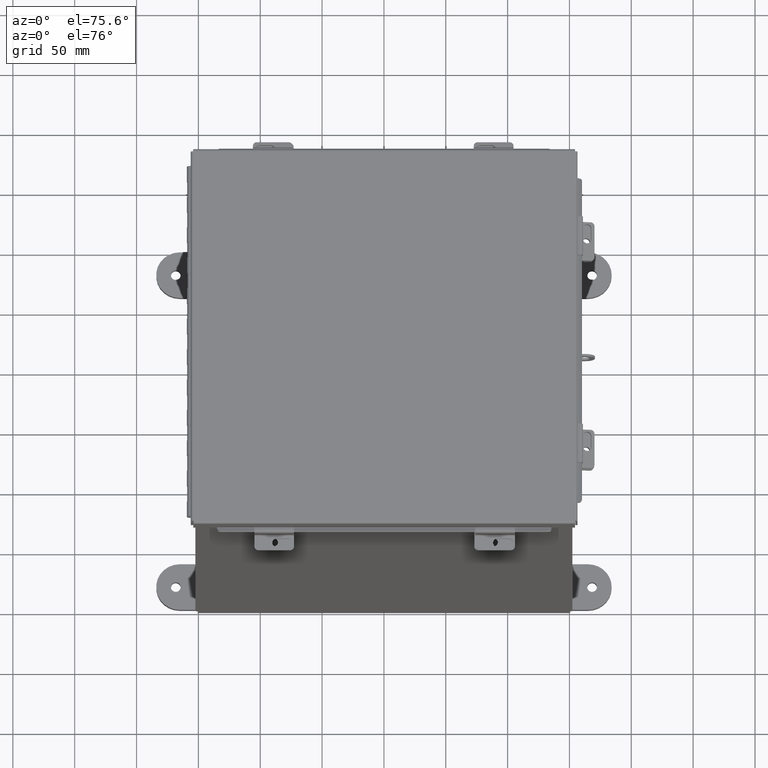
[diagram: clean part render]
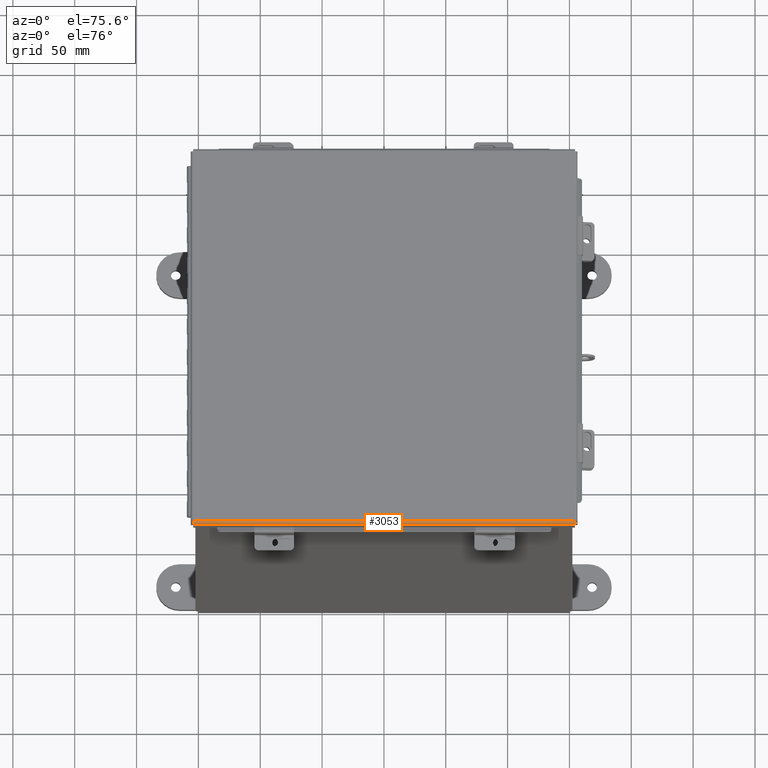
[diagram: same view with one face highlighted and labeled with its STEP entity id]
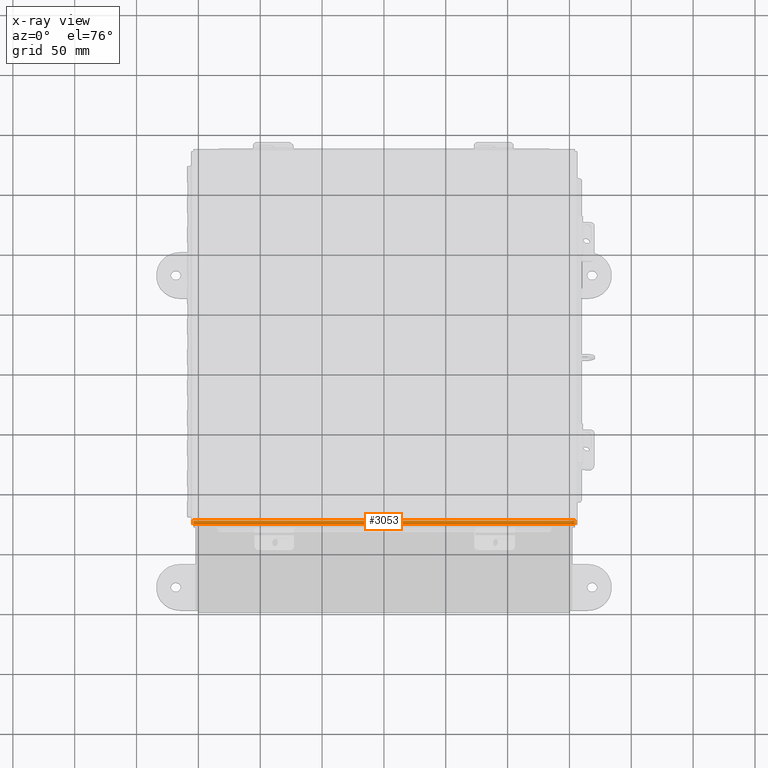
[diagram: x-ray of the same camera — body ghosted, the highlighted face saturated]
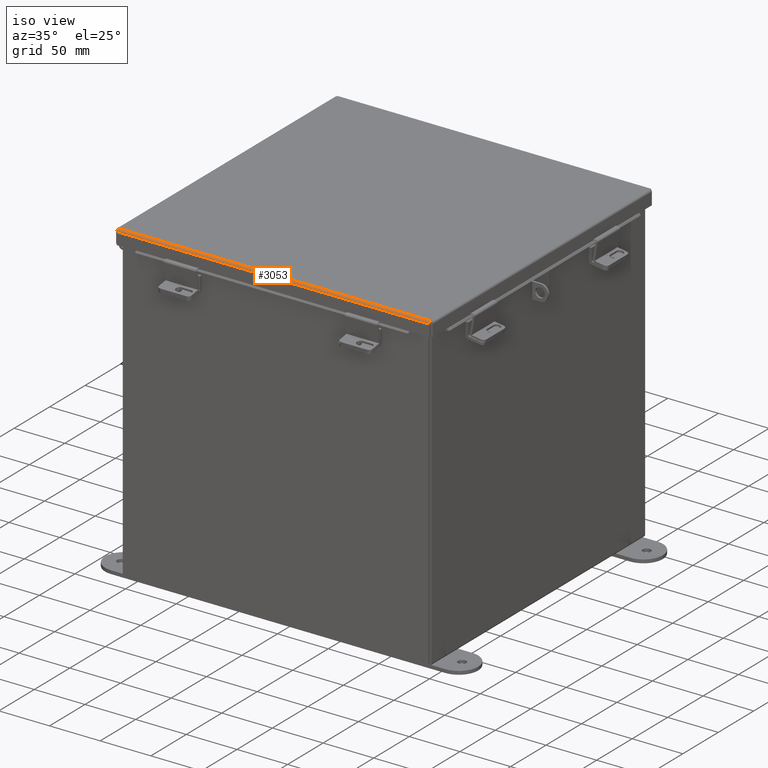
[diagram: same view with one face highlighted and labeled with its STEP entity id]
A machine part, auxiliary view. The second image highlights one B-rep face of the part: STEP entity #3053.
The next image is the same camera in x-ray: the body ghosted, the highlighted face saturated — about 0% of this face is hidden behind the body in this view.
A second angle (iso view) of the same face is appended — the face is thin or edge-on in the first view.
In plain terms, the highlighted cylindrical surface (edge-blend (fillet) strip) has radius 2.2276 mm, axis along (-1, 0, -0).
Its self-contained STEP definition (entity closure, byte-faithful):
#48 = CARTESIAN_POINT ( 'NONE',  ( -6.073984854505826400, -6.156250000000012400, 0.001520096845006975100 ) ) ;
#415 = CARTESIAN_POINT ( 'NONE',  ( 6.072502621458780500, -6.145181066258679400, -0.03116738457852826300 ) ) ;
#606 = CARTESIAN_POINT ( 'NONE',  ( -6.068550000000011700, -6.068550000000011700, -0.07470000000000015500 ) ) ;
#1214 = AXIS2_PLACEMENT_3D ( 'NONE', #9014, #6456, #14899 ) ;
#1514 = CARTESIAN_POINT ( 'NONE',  ( 6.068550000000035600, -6.068550000000011700, -0.07470000000000015500 ) ) ;
#1567 = CARTESIAN_POINT ( 'NONE',  ( 6.072008543776436600, -6.138680782078332700, -0.04089574734180042400 ) ) ;
#1620 = CARTESIAN_POINT ( 'NONE',  ( -6.074478932188161400, -6.156250000000012400, 0.01300000000000010700 ) ) ;
#1734 = ORIENTED_EDGE ( 'NONE', *, *, #14344, .F. ) ;
#1988 = CARTESIAN_POINT ( 'NONE',  ( -6.156250000000022200, -6.156250000000012400, 0.01300000000000010700 ) ) ;
#2655 = CARTESIAN_POINT ( 'NONE',  ( 6.074478932188161400, -6.156250000000012400, 0.01300000000000010700 ) ) ;
#2913 = FACE_OUTER_BOUND ( 'NONE', #14194, .T. ) ;
#3053 = ADVANCED_FACE ( 'NONE', ( #2913 ), #7973, .T. ) ;
#3110 = CARTESIAN_POINT ( 'NONE',  ( 6.074478932188172900, -6.068550000000011700, -0.07470000000000015500 ) ) ;
#3264 = EDGE_CURVE ( 'NONE', #13726, #10161, #6407, .T. ) ;
#4068 = VERTEX_POINT ( 'NONE', #15030 ) ;
#4453 = CARTESIAN_POINT ( 'NONE',  ( 6.073490776823472700, -6.153967403743823900, -0.009955289458309223000 ) ) ;
#4875 = CARTESIAN_POINT ( 'NONE',  ( -6.073490776823484300, -6.153967403743823900, -0.009955289458309221300 ) ) ;
#5435 = B_SPLINE_CURVE_WITH_KNOTS ( 'NONE', 3,
 ( #606, #11366, #6690, #9294, #13517, #15597, #8513, #4875, #48, #8988 ),
 .UNSPECIFIED., .F., .F.,
 ( 4, 2, 2, 2, 4 ),
 ( 0.0000000000000000000, 0.2500000000000000000, 0.5000000000000000000, 0.7500000000000000000, 1.000000000000000000 ),
 .UNSPECIFIED. ) ;
#5984 = EDGE_CURVE ( 'NONE', #13726, #15071, #8251, .T. ) ;
#6407 = B_SPLINE_CURVE_WITH_KNOTS ( 'NONE', 3,
 ( #13864, #6762, #4453, #415, #1567, #10323, #15563, #10491, #11357, #1514 ),
 .UNSPECIFIED., .F., .F.,
 ( 4, 2, 2, 2, 4 ),
 ( 0.0000000000000000000, 0.2500000000000000600, 0.5000000000000000000, 0.7500000000000000000, 1.000000000000000000 ),
 .UNSPECIFIED. ) ;
#6456 = DIRECTION ( 'NONE',  ( 1.000000000000000000, 1.152944185888926400E-030, -1.577721810442015900E-030 ) ) ;
#6690 = CARTESIAN_POINT ( 'NONE',  ( -6.069538155364723400, -6.091505289458322800, -0.07241740374381171200 ) ) ;
#6762 = CARTESIAN_POINT ( 'NONE',  ( 6.073984854505816600, -6.156250000000011500, 0.001520096845006977200 ) ) ;
#7806 = ORIENTED_EDGE ( 'NONE', *, *, #3264, .F. ) ;
#7856 = EDGE_CURVE ( 'NONE', #10161, #4068, #14589, .T. ) ;
#7973 = CYLINDRICAL_SURFACE ( 'NONE', #1214, 0.08770000000000026400 ) ;
#8100 = VECTOR ( 'NONE', #8345, 39.37007874015748100 ) ;
#8251 = LINE ( 'NONE', #1988, #12195 ) ;
#8345 = DIRECTION ( 'NONE',  ( -1.000000000000000000, -1.152944185888926400E-030, 1.577721810442015900E-030 ) ) ;
#8513 = CARTESIAN_POINT ( 'NONE',  ( -6.072502621458793800, -6.145181066258679400, -0.03116738457852827000 ) ) ;
#8730 = DIRECTION ( 'NONE',  ( -1.000000000000000000, -1.152944185888926400E-030, 1.577721810442015900E-030 ) ) ;
#8988 = CARTESIAN_POINT ( 'NONE',  ( -6.074478932188161400, -6.156250000000012400, 0.01300000000000010700 ) ) ;
#9014 = CARTESIAN_POINT ( 'NONE',  ( 6.074478932188161400, -6.068550000000011700, 0.01300000000000010700 ) ) ;
#9294 = CARTESIAN_POINT ( 'NONE',  ( -6.070526310729410300, -6.112717384578538700, -0.06363106625866883600 ) ) ;
#10161 = VERTEX_POINT ( 'NONE', #13738 ) ;
#10323 = CARTESIAN_POINT ( 'NONE',  ( 6.071020388411749700, -6.122445747341814100, -0.05713078207832082700 ) ) ;
#10491 = CARTESIAN_POINT ( 'NONE',  ( 6.069538155364711000, -6.091505289458322800, -0.07241740374381169800 ) ) ;
#11357 = CARTESIAN_POINT ( 'NONE',  ( 6.069044077682371500, -6.080029903155007400, -0.07470000000000041900 ) ) ;
#11366 = CARTESIAN_POINT ( 'NONE',  ( -6.069044077682379500, -6.080029903155004700, -0.07470000000000041900 ) ) ;
#11561 = ORIENTED_EDGE ( 'NONE', *, *, #7856, .F. ) ;
#12195 = VECTOR ( 'NONE', #8730, 39.37007874015748100 ) ;
#12617 = ORIENTED_EDGE ( 'NONE', *, *, #5984, .T. ) ;
#13517 = CARTESIAN_POINT ( 'NONE',  ( -6.071020388411759500, -6.122445747341813200, -0.05713078207832082000 ) ) ;
#13726 = VERTEX_POINT ( 'NONE', #2655 ) ;
#13738 = CARTESIAN_POINT ( 'NONE',  ( 6.068550000000035600, -6.068550000000011700, -0.07470000000000015500 ) ) ;
#13864 = CARTESIAN_POINT ( 'NONE',  ( 6.074478932188161400, -6.156250000000012400, 0.01300000000000010700 ) ) ;
#14194 = EDGE_LOOP ( 'NONE', ( #11561, #7806, #12617, #1734 ) ) ;
#14344 = EDGE_CURVE ( 'NONE', #4068, #15071, #5435, .T. ) ;
#14589 = LINE ( 'NONE', #3110, #8100 ) ;
#14899 = DIRECTION ( 'NONE',  ( 0.0000000000000000000, -1.000000000000000000, -4.477801015840783100E-015 ) ) ;
#15030 = CARTESIAN_POINT ( 'NONE',  ( -6.068550000000011700, -6.068550000000011700, -0.07470000000000015500 ) ) ;
#15071 = VERTEX_POINT ( 'NONE', #1620 ) ;
#15563 = CARTESIAN_POINT ( 'NONE',  ( 6.070526310729402300, -6.112717384578539600, -0.06363106625866883600 ) ) ;
#15597 = CARTESIAN_POINT ( 'NONE',  ( -6.072008543776449900, -6.138680782078332700, -0.04089574734180042400 ) ) ;